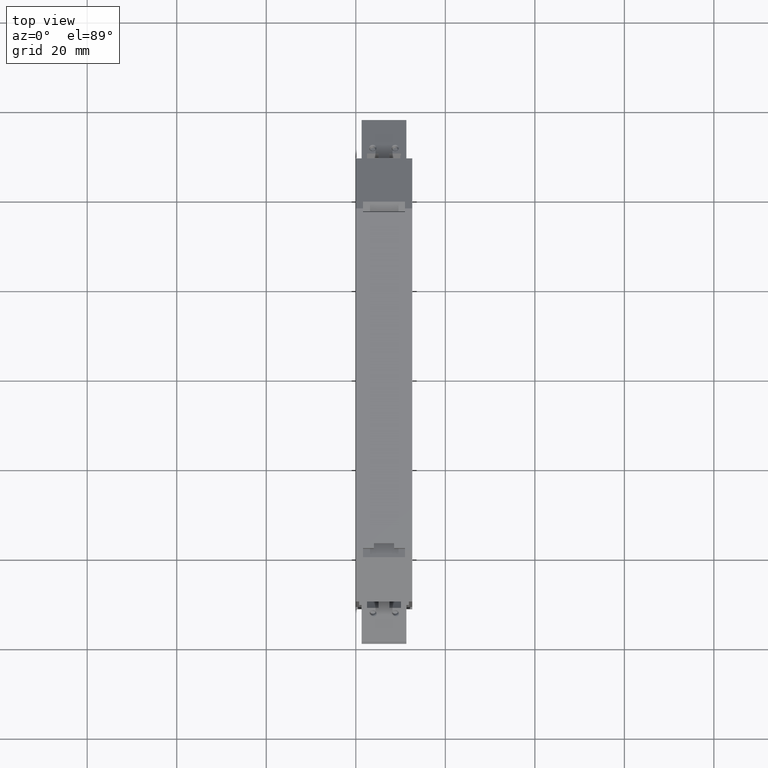
[diagram: clean part render]
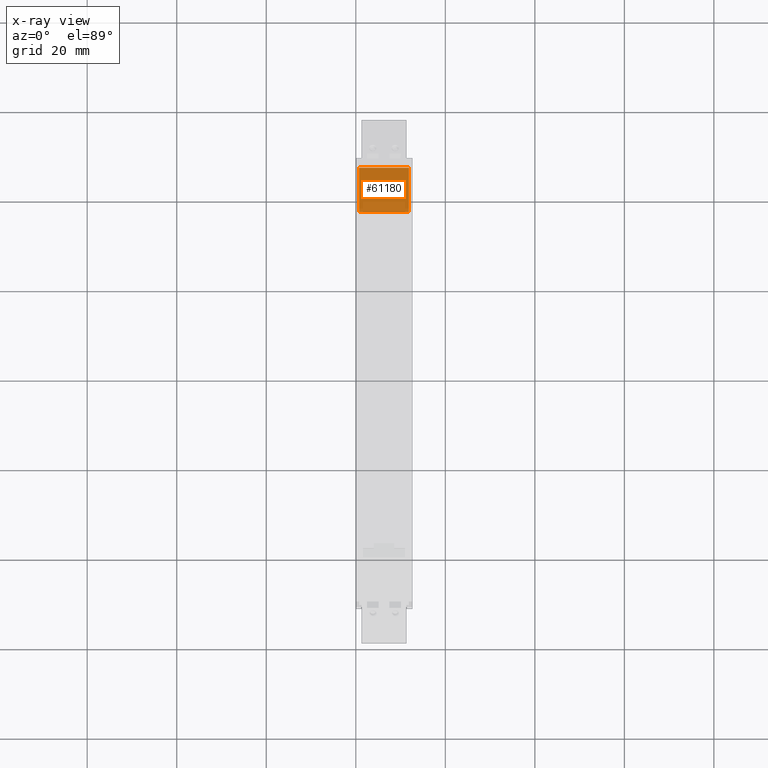
[diagram: x-ray — body ghosted, one internal face saturated and labeled with its STEP entity id]
A machine part, top view, then the same camera in x-ray: the body is ghosted and one INTERNAL B-rep face — a face not visible from any outside direction — is saturated and labeled: STEP entity #61180.
In plain terms, the highlighted planar face has unit normal (-0, 0.5445, 0.8388).
Its self-contained STEP definition (entity closure, byte-faithful):
#48660=CARTESIAN_POINT('',(0.749999222578536,49.5000000003095,
92.0616071766135));
#48670=DIRECTION('',(8.13517164729992E-13,-0.838793293337233,
0.544450007854237));
#48680=VECTOR('',#48670,1.);
#48690=LINE('',#48660,#48680);
#48700=CARTESIAN_POINT('',(0.749999222531809,97.6750490081772,
60.7917984894731));
#48710=VERTEX_POINT('',#48700);
#48720=CARTESIAN_POINT('',(0.749999222541522,87.6638861740805,
67.2899163534921));
#48730=VERTEX_POINT('',#48720);
#48740=EDGE_CURVE('',#48710,#48730,#48690,.T.);
#58400=CARTESIAN_POINT('',(11.8499992222119,87.6638861740912,
67.2899163534921));
#58410=VERTEX_POINT('',#58400);
#58440=CARTESIAN_POINT('',(11.8499992222489,49.5000000003095,
92.0616071766205));
#58450=DIRECTION('',(-8.13350631276299E-13,0.838793293337233,
-0.544450007854237));
#58460=VECTOR('',#58450,1.);
#58470=LINE('',#58440,#58460);
#58480=CARTESIAN_POINT('',(11.8499992222022,97.6750490081804,
60.7917984894779));
#58490=VERTEX_POINT('',#58480);
#58500=EDGE_CURVE('',#58410,#58490,#58470,.T.);
#58730=CARTESIAN_POINT('',(-7.77229645976263E-7,87.6638861740798,
67.289916353492));
#58740=DIRECTION('',(1.,9.69564701079104E-13,6.43920574064982E-17));
#58750=VECTOR('',#58740,1.);
#58760=LINE('',#58730,#58750);
#58770=EDGE_CURVE('',#48730,#58410,#58760,.T.);
#61020=CARTESIAN_POINT('',(11.3499984449729,97.2556523936173,
61.0640234725655));
#61030=DIRECTION('',(-5.27933520743606E-13,0.544450007854237,
0.838793293337233));
#61040=DIRECTION('',(8.13351775150574E-13,-0.838793293337233,
0.544450007854237));
#61050=AXIS2_PLACEMENT_3D('',#61020,#61030,#61040);
#61060=PLANE('',#61050);
#61070=ORIENTED_EDGE('',*,*,#58500,.T.);
#61080=ORIENTED_EDGE('',*,*,#58770,.T.);
#61090=ORIENTED_EDGE('',*,*,#48740,.T.);
#61100=CARTESIAN_POINT('',(8.79999999946697,97.6750490081795,
60.7917984894766));
#61110=DIRECTION('',(1.,2.87434452502281E-13,4.42826419538175E-13));
#61120=VECTOR('',#61110,1.);
#61130=LINE('',#61100,#61120);
#61140=EDGE_CURVE('',#48710,#58490,#61130,.T.);
#61150=ORIENTED_EDGE('',*,*,#61140,.F.);
#61160=EDGE_LOOP('',(#61150,#61090,#61080,#61070));
#61170=FACE_OUTER_BOUND('',#61160,.T.);
#61180=ADVANCED_FACE('',(#61170),#61060,.T.);